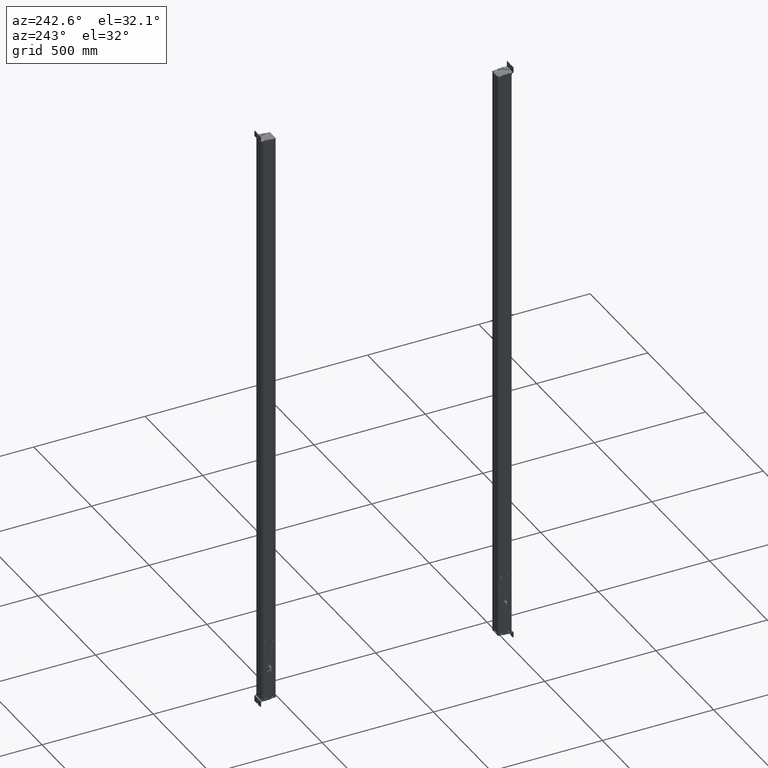
[diagram: clean part render]
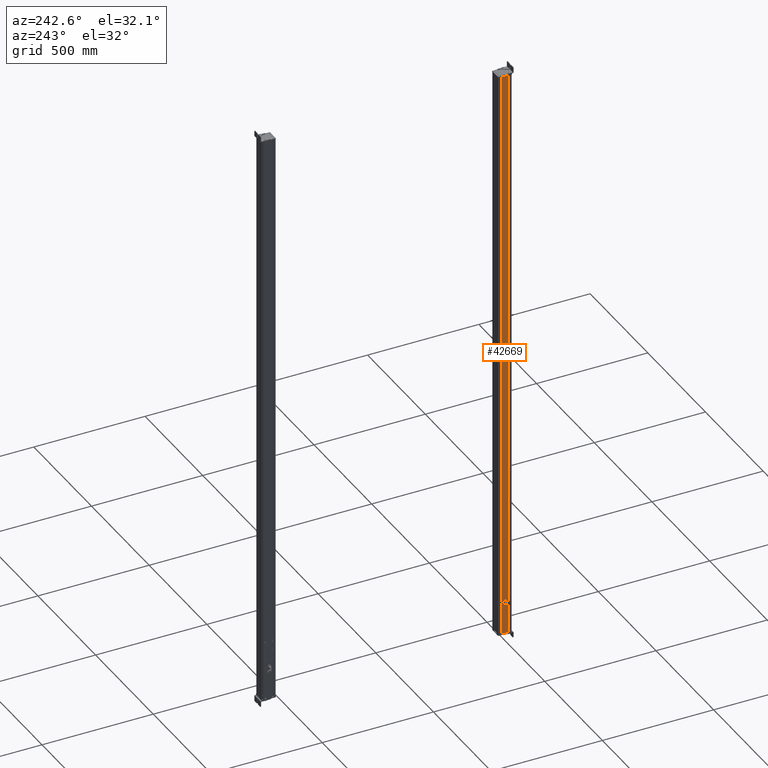
[diagram: same view with one face highlighted and labeled with its STEP entity id]
A machine part, auxiliary view. The second image highlights one B-rep face of the part: STEP entity #42669.
In plain terms, the highlighted planar face has unit normal (-1, 0, 0).
Its self-contained STEP definition (entity closure, byte-faithful):
#41910=CARTESIAN_POINT('Axis2P3D Location',(613.195548937,133.067790275,0.)) ;
#42622=CARTESIAN_POINT('Vertex',(613.195548938,166.010394004,0.)) ;
#42625=CARTESIAN_POINT('Line Origine',(613.195548938,166.010394004,1311.)) ;
#42629=CARTESIAN_POINT('Vertex',(613.195548938,166.010394004,2622.)) ;
#42644=CARTESIAN_POINT('Line Origine',(613.195548937,152.38909214,0.)) ;
#42648=CARTESIAN_POINT('Vertex',(613.195548937,138.767790274,0.)) ;
#42651=CARTESIAN_POINT('Line Origine',(613.195548937,138.767790274,1311.)) ;
#42655=CARTESIAN_POINT('Vertex',(613.195548937,138.767790274,2622.)) ;
#42658=CARTESIAN_POINT('Line Origine',(613.195548937,152.38909214,2622.)) ;
#41911=DIRECTION('Axis2P3D Direction',(-1.,0.,0.)) ;
#41912=DIRECTION('Axis2P3D XDirection',(0.,-1.,0.)) ;
#42626=DIRECTION('Vector Direction',(0.,0.,1.)) ;
#42645=DIRECTION('Vector Direction',(0.,-1.,0.)) ;
#42652=DIRECTION('Vector Direction',(0.,0.,1.)) ;
#42659=DIRECTION('Vector Direction',(0.,-1.,0.)) ;
#41913=AXIS2_PLACEMENT_3D('Plane Axis2P3D',#41910,#41911,#41912) ;
#42664=ORIENTED_EDGE('',*,*,#42631,.F.) ;
#42665=ORIENTED_EDGE('',*,*,#42650,.T.) ;
#42666=ORIENTED_EDGE('',*,*,#42657,.T.) ;
#42667=ORIENTED_EDGE('',*,*,#42662,.F.) ;
#42627=VECTOR('Line Direction',#42626,1.) ;
#42646=VECTOR('Line Direction',#42645,1.) ;
#42653=VECTOR('Line Direction',#42652,1.) ;
#42660=VECTOR('Line Direction',#42659,1.) ;
#42669=ADVANCED_FACE('Body.2',(#42668),#41914,.T.) ;
#42631=EDGE_CURVE('',#42623,#42630,#42628,.T.) ;
#42650=EDGE_CURVE('',#42623,#42649,#42647,.T.) ;
#42657=EDGE_CURVE('',#42649,#42656,#42654,.T.) ;
#42662=EDGE_CURVE('',#42630,#42656,#42661,.T.) ;
#42663=EDGE_LOOP('',(#42664,#42665,#42666,#42667)) ;
#42668=FACE_OUTER_BOUND('',#42663,.T.) ;
#42628=LINE('Line',#42625,#42627) ;
#42647=LINE('Line',#42644,#42646) ;
#42654=LINE('Line',#42651,#42653) ;
#42661=LINE('Line',#42658,#42660) ;
#41914=PLANE('Plane',#41913) ;
#42623=VERTEX_POINT('',#42622) ;
#42630=VERTEX_POINT('',#42629) ;
#42649=VERTEX_POINT('',#42648) ;
#42656=VERTEX_POINT('',#42655) ;